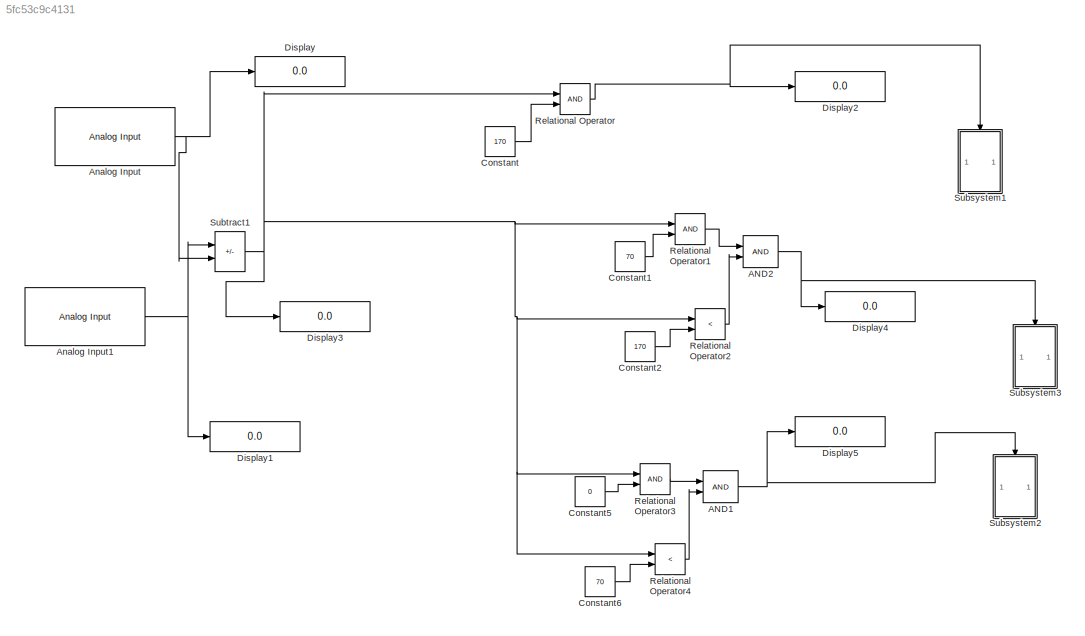
MODEL slx_5fc53c9c4131
KIND model
CONFIG AbsTol = auto
CONFIG EnableMultiTasking = off
CONFIG FixedStep = auto
CONFIG MaxStep = auto
CONFIG MinStep = auto
CONFIG RelTol = 1e-3
CONFIG SampleTimeConstraint = Unconstrained
CONFIG SolverName = FixedStepAuto
CONFIG StartTime = 0.0
CONFIG StopTime = inf
BLOCK [Logic] AND1
  AllPortsSameDT = off
  IconShape = distinctive
  OutDataTypeStr = boolean
BLOCK [Logic] AND2
  AllPortsSameDT = off
  IconShape = distinctive
  OutDataTypeStr = boolean
BLOCK [Reference] Analog Input  REF=arduinolib/Analog Input
  SourceBlock = arduinolib/Analog Input
  SourceType = Arduino Analog Input
BLOCK [Reference] Analog Input1  REF=arduinolib/Analog Input
  SourceBlock = arduinolib/Analog Input
  SourceType = Arduino Analog Input
BLOCK [Constant] Constant
  Value = 170
BLOCK [Constant] Constant1
  Value = 70
BLOCK [Constant] Constant2
  Value = 170
BLOCK [Constant] Constant5
  Value = 0
BLOCK [Constant] Constant6
  Value = 70
BLOCK [Display] Display
  Decimation = 1
BLOCK [Display] Display1
  Decimation = 1
BLOCK [Display] Display2
  Decimation = 1
  Format = decimal (Stored Integer)
BLOCK [Display] Display3
  Decimation = 1
  Format = decimal (Stored Integer)
BLOCK [Display] Display4
  Decimation = 1
  Format = decimal (Stored Integer)
BLOCK [Display] Display5
  Decimation = 1
  Format = decimal (Stored Integer)
BLOCK [RelationalOperator] Relational Operator
  InputSameDT = off
  OutDataTypeStr = boolean
  RndMeth = Simplest
BLOCK [RelationalOperator] Relational Operator1
  InputSameDT = off
  OutDataTypeStr = boolean
  RndMeth = Simplest
BLOCK [RelationalOperator] Relational Operator2
  InputSameDT = off
  Operator = <
  OutDataTypeStr = boolean
  RndMeth = Simplest
BLOCK [RelationalOperator] Relational Operator3
  InputSameDT = off
  OutDataTypeStr = boolean
  RndMeth = Simplest
BLOCK [RelationalOperator] Relational Operator4
  InputSameDT = off
  Operator = <
  OutDataTypeStr = boolean
  RndMeth = Simplest
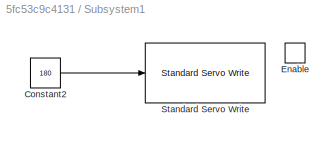
BLOCK [SubSystem] Subsystem1
BLOCK [Constant] Subsystem1/Constant2
  Value = 180
BLOCK [EnablePort] Subsystem1/Enable
BLOCK [Reference] Subsystem1/Standard Servo Write  REF=arduinolib/Standard Servo Write
  SourceBlock = arduinolib/Standard Servo Write
  SourceType = Arduino Standard Servo Write
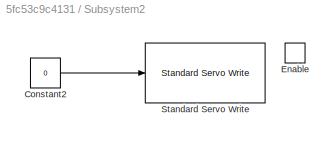
BLOCK [SubSystem] Subsystem2
BLOCK [Constant] Subsystem2/Constant2
  Value = 0
BLOCK [EnablePort] Subsystem2/Enable
BLOCK [Reference] Subsystem2/Standard Servo Write  REF=arduinolib/Standard Servo Write
  SourceBlock = arduinolib/Standard Servo Write
  SourceType = Arduino Standard Servo Write
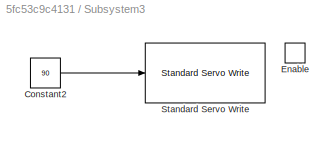
BLOCK [SubSystem] Subsystem3
BLOCK [Constant] Subsystem3/Constant2
  Value = 90
BLOCK [EnablePort] Subsystem3/Enable
BLOCK [Reference] Subsystem3/Standard Servo Write  REF=arduinolib/Standard Servo Write
  SourceBlock = arduinolib/Standard Servo Write
  SourceType = Arduino Standard Servo Write
BLOCK [Sum] Subtract1
  AccumDataTypeStr = Inherit: Same as first input
  IconShape = rectangular
  Inputs = +-
  OutDataTypeStr = Inherit: Same as first input
  SaturateOnIntegerOverflow = on
NET AND1:1 -> Display5:1, Subsystem2:enable
NET AND2:1 -> Display4:1, Subsystem3:enable
NET Analog Input1:1 -> Display1:1, Subtract1:1
NET Analog Input:1 -> Display:1, Subtract1:2
LINE Constant1:1 -> Relational Operator1:2
LINE Constant2:1 -> Relational Operator2:2
LINE Constant5:1 -> Relational Operator3:2
LINE Constant6:1 -> Relational Operator4:2
LINE Constant:1 -> Relational Operator:2
LINE Relational Operator1:1 -> AND2:1
LINE Relational Operator2:1 -> AND2:2
LINE Relational Operator3:1 -> AND1:1
LINE Relational Operator4:1 -> AND1:2
NET Relational Operator:1 -> Display2:1, Subsystem1:enable
LINE Subsystem1/Constant2:1 -> Subsystem1/Standard Servo Write:1
LINE Subsystem2/Constant2:1 -> Subsystem2/Standard Servo Write:1
LINE Subsystem3/Constant2:1 -> Subsystem3/Standard Servo Write:1
NET Subtract1:1 -> Display3:1, Relational Operator1:1, Relational Operator2:1, Relational Operator3:1, Relational Operator4:1, Relational Operator:1
note: NET lines group one-source signal fan-out (src -> all destinations, sorted); 1:1 wires keep LINE
